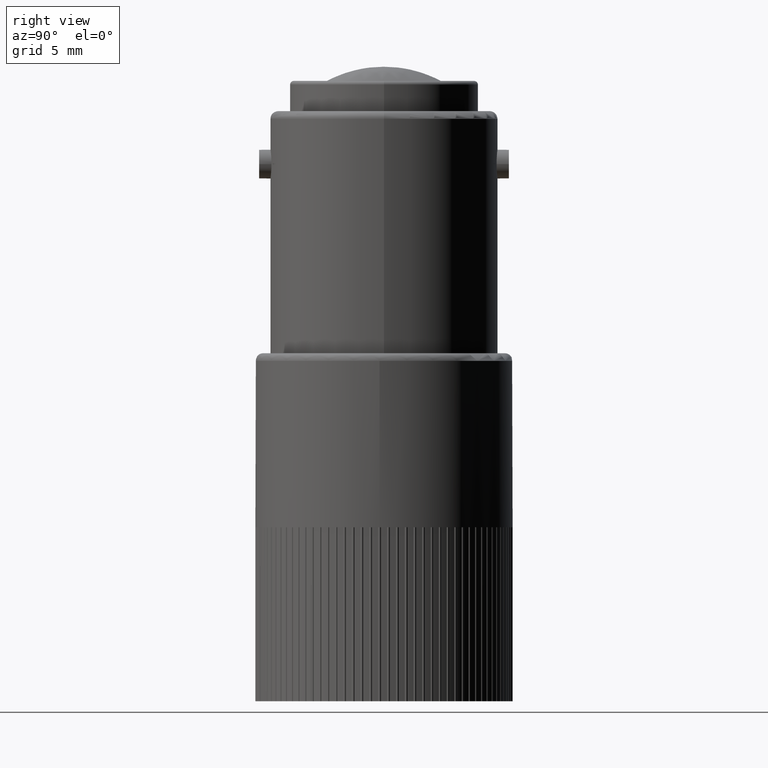
[diagram: clean part render]
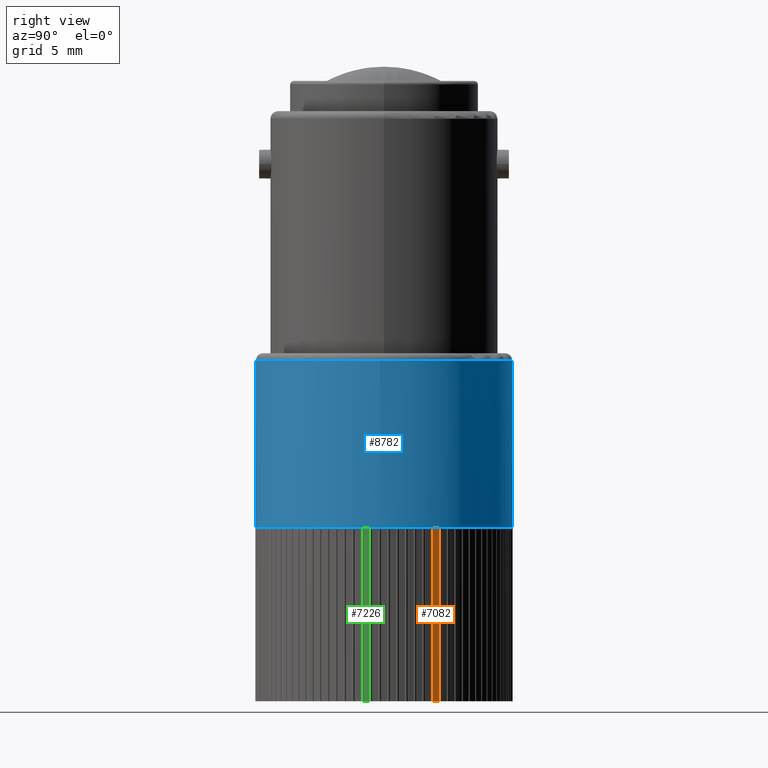
[diagram: same view with three faces highlighted in distinct colors, each labeled with its STEP entity id]
A machine part, right view with three faces highlighted in distinct colors.
Their STEP definitions:

[orange] entity #7082 — the highlighted cylindrical surface (partial cylindrical patch) has radius 8.45 mm, axis along (0, 0, -1).
#3764=CARTESIAN_POINT('',(-4.145187078477905,8.979376037539492,-11.500000000000002));
#3765=VERTEX_POINT('',#3764);
#3790=CARTESIAN_POINT('',(-4.145187078477905,8.979376037539492,-23.000000000000004));
#3791=VERTEX_POINT('',#3790);
#3799=CARTESIAN_POINT('',(-4.145187078477905,8.979376037539492,-11.500000000000002));
#3800=DIRECTION('',(0.0,0.0,-1.0));
#3801=VECTOR('',#3800,11.500000000000002);
#3802=LINE('',#3799,#3801);
#3803=EDGE_CURVE('',#3765,#3791,#3802,.T.);
#3824=CARTESIAN_POINT('',(-4.315496412967583,9.361897065742458,-11.500000000000002));
#3825=VERTEX_POINT('',#3824);
#3833=CARTESIAN_POINT('',(-4.315496412967583,9.361897065742458,-23.000000000000004));
#3834=VERTEX_POINT('',#3833);
#3835=CARTESIAN_POINT('',(-4.315496412967583,9.361897065742458,-23.000000000000004));
#3836=DIRECTION('',(0.0,0.0,1.0));
#3837=VECTOR('',#3836,11.500000000000002);
#3838=LINE('',#3835,#3837);
#3839=EDGE_CURVE('',#3834,#3825,#3838,.T.);
#5024=CARTESIAN_POINT('',(-11.947431124239413,5.734766993235528,-11.500000000000002));
#5025=DIRECTION('',(0.0,0.0,1.0));
#5026=DIRECTION('',(1.0,0.0,0.0));
#5027=AXIS2_PLACEMENT_3D('',#5024,#5025,#5026);
#5028=CIRCLE('',#5027,8.449999999999999);
#5029=EDGE_CURVE('',#3765,#3825,#5028,.T.);
#7065=CARTESIAN_POINT('',(-11.947431124239413,5.734766993235528,-11.500000000000002));
#7066=DIRECTION('',(0.0,0.0,-1.0));
#7067=DIRECTION('',(1.0,0.0,0.0));
#7068=AXIS2_PLACEMENT_3D('',#7065,#7066,#7067);
#7069=CYLINDRICAL_SURFACE('',#7068,8.449999999999999);
#7070=ORIENTED_EDGE('',*,*,#3803,.T.);
#7071=CARTESIAN_POINT('',(-11.947431124239413,5.734766993235528,-23.000000000000004));
#7072=DIRECTION('',(0.0,0.0,1.0));
#7073=DIRECTION('',(1.0,0.0,0.0));
#7074=AXIS2_PLACEMENT_3D('',#7071,#7072,#7073);
#7075=CIRCLE('',#7074,8.449999999999999);
#7076=EDGE_CURVE('',#3791,#3834,#7075,.T.);
#7077=ORIENTED_EDGE('',*,*,#7076,.T.);
#7078=ORIENTED_EDGE('',*,*,#3839,.T.);
#7079=ORIENTED_EDGE('',*,*,#5029,.F.);
#7080=EDGE_LOOP('',(#7070,#7077,#7078,#7079));
#7081=FACE_OUTER_BOUND('',#7080,.T.);
#7082=ADVANCED_FACE('',(#7081),#7069,.T.);

[blue] entity #8782 — the highlighted cylindrical surface (bore or boss wall) has radius 8.5 mm, axis along (0, 0, -1).
#90=CARTESIAN_POINT('',(-12.540361151064484,14.214061420444038,-11.500000000000002));
#91=VERTEX_POINT('',#90);
#141=CARTESIAN_POINT('',(-13.130402482399980,14.152045577538882,-11.500000000000002));
#142=VERTEX_POINT('',#141);
#192=CARTESIAN_POINT('',(-13.714680496190375,14.049021599472880,-11.500000000000002));
#193=VERTEX_POINT('',#192);
#243=CARTESIAN_POINT('',(-14.290348648683908,13.905491408711244,-11.500000000000002));
#244=VERTEX_POINT('',#243);
#294=CARTESIAN_POINT('',(-14.854602342507599,13.722154269915752,-11.500000000000002));
#295=VERTEX_POINT('',#294);
#345=CARTESIAN_POINT('',(-15.404692590383720,13.499903383197637,-11.500000000000002));
#346=VERTEX_POINT('',#345);
#396=CARTESIAN_POINT('',(-15.937939407919492,13.239821532536414,-11.500000000000002));
#397=VERTEX_POINT('',#396);
#447=CARTESIAN_POINT('',(-16.451744870221660,12.943175810565153,-11.500000000000002));
#448=VERTEX_POINT('',#447);
#498=CARTESIAN_POINT('',(-16.943605768725444,12.611411445422586,-11.500000000000002));
#499=VERTEX_POINT('',#498);
#549=CARTESIAN_POINT('',(-17.411125806575001,12.246144759746841,-11.500000000000002));
#550=VERTEX_POINT('',#549);
#600=CARTESIAN_POINT('',(-17.852027273140894,11.849155296114063,-11.500000000000002));
#601=VERTEX_POINT('',#600);
#651=CARTESIAN_POINT('',(-18.264162140797271,11.422377147285822,-11.500000000000002));
#652=VERTEX_POINT('',#651);
#702=CARTESIAN_POINT('',(-18.645522529896553,10.967889533503625,-11.500000000000002));
#703=VERTEX_POINT('',#702);
#753=CARTESIAN_POINT('',(-18.994250490957270,10.487906672736877,-11.500000000000002));
#754=VERTEX_POINT('',#753);
#804=CARTESIAN_POINT('',(-19.308647056407150,9.984766993235533,-11.500000000000002));
#805=VERTEX_POINT('',#804);
#855=CARTESIAN_POINT('',(-19.587180517782336,9.460921740942686,-11.500000000000002));
#856=VERTEX_POINT('',#855);
#906=CARTESIAN_POINT('',(-19.828493888057114,8.918923037270783,-11.500000000000002));
#907=VERTEX_POINT('',#906);
#957=CARTESIAN_POINT('',(-20.031411512748228,8.361411445422581,-11.500000000000002));
#958=VERTEX_POINT('',#957);
#1008=CARTESIAN_POINT('',(-20.194944797585386,7.791103105832706,-11.500000000000002));
#1009=VERTEX_POINT('',#1008);
#1059=CARTESIAN_POINT('',(-20.318297024843190,7.210776503404431,-11.500000000000002));
#1060=VERTEX_POINT('',#1059);
#1110=CARTESIAN_POINT('',(-20.400867234869743,6.623258931010581,-11.500000000000002));
#1111=VERTEX_POINT('',#1110);
#1161=CARTESIAN_POINT('',(-20.442253153901735,6.031412715206792,-11.500000000000002));
#1162=VERTEX_POINT('',#1161);
#1212=CARTESIAN_POINT('',(-20.442253153901724,5.438121271264275,-11.500000000000002));
#1213=VERTEX_POINT('',#1212);
#1263=CARTESIAN_POINT('',(-20.400867234869736,4.846275055460476,-11.500000000000002));
#1264=VERTEX_POINT('',#1263);
#1314=CARTESIAN_POINT('',(-20.318297024843190,4.258757483066621,-11.500000000000002));
#1315=VERTEX_POINT('',#1314);
#1365=CARTESIAN_POINT('',(-20.194944797585389,3.678430880638354,-11.500000000000002));
#1366=VERTEX_POINT('',#1365);
#1416=CARTESIAN_POINT('',(-20.031411512748221,3.108122541048473,-11.500000000000002));
#1417=VERTEX_POINT('',#1416);
#1467=CARTESIAN_POINT('',(-19.828493888057110,2.550610949200275,-11.500000000000002));
#1468=VERTEX_POINT('',#1467);
#1518=CARTESIAN_POINT('',(-19.587180517782336,2.008612245528369,-11.500000000000002));
#1519=VERTEX_POINT('',#1518);
#1569=CARTESIAN_POINT('',(-19.308647056407146,1.484766993235522,-11.500000000000002));
#1570=VERTEX_POINT('',#1569);
#1620=CARTESIAN_POINT('',(-18.994250490957274,0.981627313734179,-11.500000000000002));
#1621=VERTEX_POINT('',#1620);
#1671=CARTESIAN_POINT('',(-18.645522529896553,0.501644452967434,-11.500000000000002));
#1672=VERTEX_POINT('',#1671);
#1722=CARTESIAN_POINT('',(-18.264162140797268,0.047156839185235,-11.500000000000002));
#1723=VERTEX_POINT('',#1722);
#1773=CARTESIAN_POINT('',(-17.852027273140894,-0.379621309643006,-11.500000000000002));
#1774=VERTEX_POINT('',#1773);
#1824=CARTESIAN_POINT('',(-17.411125806575001,-0.776610773275784,-11.500000000000002));
#1825=VERTEX_POINT('',#1824);
#1875=CARTESIAN_POINT('',(-16.943605768725440,-1.141877458951528,-11.500000000000002));
#1876=VERTEX_POINT('',#1875);
#1926=CARTESIAN_POINT('',(-16.451744870221656,-1.473641824094094,-11.500000000000002));
#1927=VERTEX_POINT('',#1926);
#1977=CARTESIAN_POINT('',(-15.937939407919488,-1.770287546065352,-11.500000000000002));
#1978=VERTEX_POINT('',#1977);
#2028=CARTESIAN_POINT('',(-15.404692590383714,-2.030369396726580,-11.500000000000002));
#2029=VERTEX_POINT('',#2028);
#2079=CARTESIAN_POINT('',(-14.854602342507597,-2.252620283444690,-11.500000000000002));
#2080=VERTEX_POINT('',#2079);
#2130=CARTESIAN_POINT('',(-14.290348648683908,-2.435957422240182,-11.500000000000002));
#2131=VERTEX_POINT('',#2130);
#2181=CARTESIAN_POINT('',(-13.714680496190372,-2.579487613001820,-11.500000000000002));
#2182=VERTEX_POINT('',#2181);
#2232=CARTESIAN_POINT('',(-13.130402482399973,-2.682511591067824,-11.500000000000002));
#2233=VERTEX_POINT('',#2232);
#2283=CARTESIAN_POINT('',(-12.540361151064483,-2.744527433972981,-11.500000000000002));
#2284=VERTEX_POINT('',#2283);
#2334=CARTESIAN_POINT('',(-11.947431124239413,-2.765233006764472,-11.500000000000002));
#2335=VERTEX_POINT('',#2334);
#2385=CARTESIAN_POINT('',(-11.354501097414351,-2.744527433972978,-11.500000000000002));
#2386=VERTEX_POINT('',#2385);
#2436=CARTESIAN_POINT('',(-10.764459766078856,-2.682511591067822,-11.500000000000002));
#2437=VERTEX_POINT('',#2436);
#2487=CARTESIAN_POINT('',(-10.180181752288458,-2.579487613001821,-11.500000000000002));
#2488=VERTEX_POINT('',#2487);
#2538=CARTESIAN_POINT('',(-9.604513599794922,-2.435957422240182,-11.500000000000002));
#2539=VERTEX_POINT('',#2538);
#2589=CARTESIAN_POINT('',(-9.040259905971235,-2.252620283444695,-11.500000000000002));
#2590=VERTEX_POINT('',#2589);
#2640=CARTESIAN_POINT('',(-8.490169658095111,-2.030369396726580,-11.500000000000002));
#2641=VERTEX_POINT('',#2640);
#2691=CARTESIAN_POINT('',(-7.956922840559345,-1.770287546065351,-11.500000000000002));
#2692=VERTEX_POINT('',#2691);
#2742=CARTESIAN_POINT('',(-7.443117378257168,-1.473641824094095,-11.500000000000002));
#2743=VERTEX_POINT('',#2742);
#2793=CARTESIAN_POINT('',(-6.951256479753388,-1.141877458951524,-11.500000000000002));
#2794=VERTEX_POINT('',#2793);
#2844=CARTESIAN_POINT('',(-6.483736441903827,-0.776610773275783,-11.500000000000002));
#2845=VERTEX_POINT('',#2844);
#2895=CARTESIAN_POINT('',(-6.042834975337942,-0.379621309643008,-11.500000000000002));
#2896=VERTEX_POINT('',#2895);
#2946=CARTESIAN_POINT('',(-5.630700107681559,0.047156839185232,-11.500000000000002));
#2947=VERTEX_POINT('',#2946);
#2997=CARTESIAN_POINT('',(-5.249339718582277,0.501644452967431,-11.500000000000002));
#2998=VERTEX_POINT('',#2997);
#3048=CARTESIAN_POINT('',(-4.900611757521553,0.981627313734182,-11.500000000000002));
#3049=VERTEX_POINT('',#3048);
#3099=CARTESIAN_POINT('',(-4.586215192071684,1.484766993235530,-11.500000000000002));
#3100=VERTEX_POINT('',#3099);
#3150=CARTESIAN_POINT('',(-4.307681730696499,2.008612245528370,-11.500000000000002));
#3151=VERTEX_POINT('',#3150);
#3201=CARTESIAN_POINT('',(-4.066368360421721,2.550610949200276,-11.500000000000002));
#3202=VERTEX_POINT('',#3201);
#3252=CARTESIAN_POINT('',(-3.863450735730605,3.108122541048475,-11.500000000000002));
#3253=VERTEX_POINT('',#3252);
#3303=CARTESIAN_POINT('',(-3.699917450893447,3.678430880638354,-11.500000000000002));
#3304=VERTEX_POINT('',#3303);
#3354=CARTESIAN_POINT('',(-3.576565223635643,4.258757483066622,-11.500000000000002));
#3355=VERTEX_POINT('',#3354);
#3405=CARTESIAN_POINT('',(-3.493995013609086,4.846275055460475,-11.500000000000002));
#3406=VERTEX_POINT('',#3405);
#3456=CARTESIAN_POINT('',(-3.452609094577099,5.438121271264271,-11.500000000000002));
#3457=VERTEX_POINT('',#3456);
#3507=CARTESIAN_POINT('',(-3.452609094577102,6.031412715206787,-11.500000000000002));
#3508=VERTEX_POINT('',#3507);
#3558=CARTESIAN_POINT('',(-3.493995013609089,6.623258931010584,-11.500000000000002));
#3559=VERTEX_POINT('',#3558);
#3609=CARTESIAN_POINT('',(-3.576565223635644,7.210776503404440,-11.500000000000002));
#3610=VERTEX_POINT('',#3609);
#3660=CARTESIAN_POINT('',(-3.699917450893442,7.791103105832708,-11.500000000000002));
#3661=VERTEX_POINT('',#3660);
#3711=CARTESIAN_POINT('',(-3.863450735730609,8.361411445422581,-11.500000000000002));
#3712=VERTEX_POINT('',#3711);
#3762=CARTESIAN_POINT('',(-4.066368360421718,8.918923037270780,-11.500000000000002));
#3763=VERTEX_POINT('',#3762);
#3813=CARTESIAN_POINT('',(-4.307681730696497,9.460921740942691,-11.500000000000002));
#3814=VERTEX_POINT('',#3813);
#3864=CARTESIAN_POINT('',(-4.586215192071688,9.984766993235532,-11.500000000000002));
#3865=VERTEX_POINT('',#3864);
#3915=CARTESIAN_POINT('',(-4.900611757521559,10.487906672736873,-11.500000000000002));
#3916=VERTEX_POINT('',#3915);
#3966=CARTESIAN_POINT('',(-5.249339718582276,10.967889533503625,-11.500000000000002));
#3967=VERTEX_POINT('',#3966);
#4017=CARTESIAN_POINT('',(-5.630700107681564,11.422377147285827,-11.500000000000002));
#4018=VERTEX_POINT('',#4017);
#4068=CARTESIAN_POINT('',(-6.042834975337936,11.849155296114066,-11.500000000000002));
#4069=VERTEX_POINT('',#4068);
#4119=CARTESIAN_POINT('',(-6.483736441903830,12.246144759746844,-11.500000000000002));
#4120=VERTEX_POINT('',#4119);
#4170=CARTESIAN_POINT('',(-6.951256479753392,12.611411445422583,-11.500000000000002));
#4171=VERTEX_POINT('',#4170);
#4221=CARTESIAN_POINT('',(-7.443117378257171,12.943175810565153,-11.500000000000002));
#4222=VERTEX_POINT('',#4221);
#4272=CARTESIAN_POINT('',(-7.956922840559340,13.239821532536409,-11.500000000000002));
#4273=VERTEX_POINT('',#4272);
#4323=CARTESIAN_POINT('',(-8.490169658095113,13.499903383197642,-11.500000000000002));
#4324=VERTEX_POINT('',#4323);
#4374=CARTESIAN_POINT('',(-9.040259905971229,13.722154269915752,-11.500000000000002));
#4375=VERTEX_POINT('',#4374);
#4425=CARTESIAN_POINT('',(-9.604513599794920,13.905491408711244,-11.500000000000002));
#4426=VERTEX_POINT('',#4425);
#4476=CARTESIAN_POINT('',(-10.180181752288464,14.049021599472880,-11.500000000000002));
#4477=VERTEX_POINT('',#4476);
#4527=CARTESIAN_POINT('',(-10.764459766078856,14.152045577538882,-11.500000000000002));
#4528=VERTEX_POINT('',#4527);
#4578=CARTESIAN_POINT('',(-11.354501097414349,14.214061420444038,-11.500000000000002));
#4579=VERTEX_POINT('',#4578);
#4639=CARTESIAN_POINT('',(-11.947431124239413,14.234766993235528,-11.500000000000002));
#4640=VERTEX_POINT('',#4639);
#4648=CARTESIAN_POINT('',(-11.947431124239413,5.734766993235528,-11.500000000000002));
#4649=DIRECTION('',(0.0,0.0,1.0));
#4650=DIRECTION('',(1.0,0.0,0.0));
#4651=AXIS2_PLACEMENT_3D('',#4648,#4649,#4650);
#4652=CIRCLE('',#4651,8.500000000000000);
#4653=EDGE_CURVE('',#4579,#4640,#4652,.T.);
#4672=CARTESIAN_POINT('',(-11.947431124239413,5.734766993235528,-11.500000000000002));
#4673=DIRECTION('',(0.0,0.0,1.0));
#4674=DIRECTION('',(1.0,0.0,0.0));
#4675=AXIS2_PLACEMENT_3D('',#4672,#4673,#4674);
#4676=CIRCLE('',#4675,8.500000000000000);
#4677=EDGE_CURVE('',#4528,#4579,#4676,.T.);
#4696=CARTESIAN_POINT('',(-11.947431124239413,5.734766993235528,-11.500000000000002));
#4697=DIRECTION('',(0.0,0.0,1.0));
#4698=DIRECTION('',(1.0,0.0,0.0));
#4699=AXIS2_PLACEMENT_3D('',#4696,#4697,#4698);
#4700=CIRCLE('',#4699,8.500000000000000);
#4701=EDGE_CURVE('',#4477,#4528,#4700,.T.);
#4720=CARTESIAN_POINT('',(-11.947431124239413,5.734766993235528,-11.500000000000002));
#4721=DIRECTION('',(0.0,0.0,1.0));
#4722=DIRECTION('',(1.0,0.0,0.0));
#4723=AXIS2_PLACEMENT_3D('',#4720,#4721,#4722);
#4724=CIRCLE('',#4723,8.500000000000000);
#4725=EDGE_CURVE('',#4426,#4477,#4724,.T.);
#4744=CARTESIAN_POINT('',(-11.947431124239413,5.734766993235528,-11.500000000000002));
#4745=DIRECTION('',(0.0,0.0,1.0));
#4746=DIRECTION('',(1.0,0.0,0.0));
#4747=AXIS2_PLACEMENT_3D('',#4744,#4745,#4746);
#4748=CIRCLE('',#4747,8.500000000000000);
#4749=EDGE_CURVE('',#4375,#4426,#4748,.T.);
#4768=CARTESIAN_POINT('',(-11.947431124239413,5.734766993235528,-11.500000000000002));
#4769=DIRECTION('',(0.0,0.0,1.0));
#4770=DIRECTION('',(1.0,0.0,0.0));
#4771=AXIS2_PLACEMENT_3D('',#4768,#4769,#4770);
#4772=CIRCLE('',#4771,8.500000000000000);
#4773=EDGE_CURVE('',#4324,#4375,#4772,.T.);
#4792=CARTESIAN_POINT('',(-11.947431124239413,5.734766993235528,-11.500000000000002));
#4793=DIRECTION('',(0.0,0.0,1.0));
#4794=DIRECTION('',(1.0,0.0,0.0));
#4795=AXIS2_PLACEMENT_3D('',#4792,#4793,#4794);
#4796=CIRCLE('',#4795,8.500000000000000);
#4797=EDGE_CURVE('',#4273,#4324,#4796,.T.);
#4816=CARTESIAN_POINT('',(-11.947431124239413,5.734766993235528,-11.500000000000002));
#4817=DIRECTION('',(0.0,0.0,1.0));
#4818=DIRECTION('',(1.0,0.0,0.0));
#4819=AXIS2_PLACEMENT_3D('',#4816,#4817,#4818);
#4820=CIRCLE('',#4819,8.500000000000000);
#4821=EDGE_CURVE('',#4222,#4273,#4820,.T.);
#4840=CARTESIAN_POINT('',(-11.947431124239413,5.734766993235528,-11.500000000000002));
#4841=DIRECTION('',(0.0,0.0,1.0));
#4842=DIRECTION('',(1.0,0.0,0.0));
#4843=AXIS2_PLACEMENT_3D('',#4840,#4841,#4842);
#4844=CIRCLE('',#4843,8.500000000000000);
#4845=EDGE_CURVE('',#4171,#4222,#4844,.T.);
#4864=CARTESIAN_POINT('',(-11.947431124239413,5.734766993235528,-11.500000000000002));
#4865=DIRECTION('',(0.0,0.0,1.0));
#4866=DIRECTION('',(1.0,0.0,0.0));
#4867=AXIS2_PLACEMENT_3D('',#4864,#4865,#4866);
#4868=CIRCLE('',#4867,8.500000000000000);
#4869=EDGE_CURVE('',#4120,#4171,#4868,.T.);
#4888=CARTESIAN_POINT('',(-11.947431124239413,5.734766993235528,-11.500000000000002));
#4889=DIRECTION('',(0.0,0.0,1.0));
#4890=DIRECTION('',(1.0,0.0,0.0));
#4891=AXIS2_PLACEMENT_3D('',#4888,#4889,#4890);
#4892=CIRCLE('',#4891,8.500000000000000);
#4893=EDGE_CURVE('',#4069,#4120,#4892,.T.);
#4912=CARTESIAN_POINT('',(-11.947431124239413,5.734766993235528,-11.500000000000002));
#4913=DIRECTION('',(0.0,0.0,1.0));
#4914=DIRECTION('',(1.0,0.0,0.0));
#4915=AXIS2_PLACEMENT_3D('',#4912,#4913,#4914);
#4916=CIRCLE('',#4915,8.500000000000000);
#4917=EDGE_CURVE('',#4018,#4069,#4916,.T.);
#4936=CARTESIAN_POINT('',(-11.947431124239413,5.734766993235528,-11.500000000000002));
#4937=DIRECTION('',(0.0,0.0,1.0));
#4938=DIRECTION('',(1.0,0.0,0.0));
#4939=AXIS2_PLACEMENT_3D('',#4936,#4937,#4938);
#4940=CIRCLE('',#4939,8.500000000000000);
#4941=EDGE_CURVE('',#3967,#4018,#4940,.T.);
#4960=CARTESIAN_POINT('',(-11.947431124239413,5.734766993235528,-11.500000000000002));
#4961=DIRECTION('',(0.0,0.0,1.0));
#4962=DIRECTION('',(1.0,0.0,0.0));
#4963=AXIS2_PLACEMENT_3D('',#4960,#4961,#4962);
#4964=CIRCLE('',#4963,8.500000000000000);
#4965=EDGE_CURVE('',#3916,#3967,#4964,.T.);
#4984=CARTESIAN_POINT('',(-11.947431124239413,5.734766993235528,-11.500000000000002));
#4985=DIRECTION('',(0.0,0.0,1.0));
#4986=DIRECTION('',(1.0,0.0,0.0));
#4987=AXIS2_PLACEMENT_3D('',#4984,#4985,#4986);
#4988=CIRCLE('',#4987,8.500000000000000);
#4989=EDGE_CURVE('',#3865,#3916,#4988,.T.);
#5008=CARTESIAN_POINT('',(-11.947431124239413,5.734766993235528,-11.500000000000002));
#5009=DIRECTION('',(0.0,0.0,1.0));
#5010=DIRECTION('',(1.0,0.0,0.0));
#5011=AXIS2_PLACEMENT_3D('',#5008,#5009,#5010);
#5012=CIRCLE('',#5011,8.500000000000000);
#5013=EDGE_CURVE('',#3814,#3865,#5012,.T.);
#5032=CARTESIAN_POINT('',(-11.947431124239413,5.734766993235528,-11.500000000000002));
#5033=DIRECTION('',(0.0,0.0,1.0));
#5034=DIRECTION('',(1.0,0.0,0.0));
#5035=AXIS2_PLACEMENT_3D('',#5032,#5033,#5034);
#5036=CIRCLE('',#5035,8.500000000000000);
#5037=EDGE_CURVE('',#3763,#3814,#5036,.T.);
#5056=CARTESIAN_POINT('',(-11.947431124239413,5.734766993235528,-11.500000000000002));
#5057=DIRECTION('',(0.0,0.0,1.0));
#5058=DIRECTION('',(1.0,0.0,0.0));
#5059=AXIS2_PLACEMENT_3D('',#5056,#5057,#5058);
#5060=CIRCLE('',#5059,8.500000000000000);
#5061=EDGE_CURVE('',#3712,#3763,#5060,.T.);
#5080=CARTESIAN_POINT('',(-11.947431124239413,5.734766993235528,-11.500000000000002));
#5081=DIRECTION('',(0.0,0.0,1.0));
#5082=DIRECTION('',(1.0,0.0,0.0));
#5083=AXIS2_PLACEMENT_3D('',#5080,#5081,#5082);
#5084=CIRCLE('',#5083,8.500000000000000);
#5085=EDGE_CURVE('',#3661,#3712,#5084,.T.);
#5104=CARTESIAN_POINT('',(-11.947431124239413,5.734766993235528,-11.500000000000002));
#5105=DIRECTION('',(0.0,0.0,1.0));
#5106=DIRECTION('',(1.0,0.0,0.0));
#5107=AXIS2_PLACEMENT_3D('',#5104,#5105,#5106);
#5108=CIRCLE('',#5107,8.500000000000000);
#5109=EDGE_CURVE('',#3610,#3661,#5108,.T.);
#5128=CARTESIAN_POINT('',(-11.947431124239413,5.734766993235528,-11.500000000000002));
#5129=DIRECTION('',(0.0,0.0,1.0));
#5130=DIRECTION('',(1.0,0.0,0.0));
#5131=AXIS2_PLACEMENT_3D('',#5128,#5129,#5130);
#5132=CIRCLE('',#5131,8.500000000000000);
#5133=EDGE_CURVE('',#3559,#3610,#5132,.T.);
#5152=CARTESIAN_POINT('',(-11.947431124239413,5.734766993235528,-11.500000000000002));
#5153=DIRECTION('',(0.0,0.0,1.0));
#5154=DIRECTION('',(1.0,0.0,0.0));
#5155=AXIS2_PLACEMENT_3D('',#5152,#5153,#5154);
#5156=CIRCLE('',#5155,8.500000000000000);
#5157=EDGE_CURVE('',#3508,#3559,#5156,.T.);
#5176=CARTESIAN_POINT('',(-11.947431124239413,5.734766993235528,-11.500000000000002));
#5177=DIRECTION('',(0.0,0.0,1.0));
#5178=DIRECTION('',(1.0,0.0,0.0));
#5179=AXIS2_PLACEMENT_3D('',#5176,#5177,#5178);
#5180=CIRCLE('',#5179,8.500000000000000);
#5181=EDGE_CURVE('',#3457,#3508,#5180,.T.);
#5200=CARTESIAN_POINT('',(-11.947431124239413,5.734766993235528,-11.500000000000002));
#5201=DIRECTION('',(0.0,0.0,1.0));
#5202=DIRECTION('',(1.0,0.0,0.0));
#5203=AXIS2_PLACEMENT_3D('',#5200,#5201,#5202);
#5204=CIRCLE('',#5203,8.500000000000000);
#5205=EDGE_CURVE('',#3406,#3457,#5204,.T.);
#5224=CARTESIAN_POINT('',(-11.947431124239413,5.734766993235528,-11.500000000000002));
#5225=DIRECTION('',(0.0,0.0,1.0));
#5226=DIRECTION('',(1.0,0.0,0.0));
#5227=AXIS2_PLACEMENT_3D('',#5224,#5225,#5226);
#5228=CIRCLE('',#5227,8.500000000000000);
#5229=EDGE_CURVE('',#3355,#3406,#5228,.T.);
#5248=CARTESIAN_POINT('',(-11.947431124239413,5.734766993235528,-11.500000000000002));
#5249=DIRECTION('',(0.0,0.0,1.0));
#5250=DIRECTION('',(1.0,0.0,0.0));
#5251=AXIS2_PLACEMENT_3D('',#5248,#5249,#5250);
#5252=CIRCLE('',#5251,8.500000000000000);
#5253=EDGE_CURVE('',#3304,#3355,#5252,.T.);
#5272=CARTESIAN_POINT('',(-11.947431124239413,5.734766993235528,-11.500000000000002));
#5273=DIRECTION('',(0.0,0.0,1.0));
#5274=DIRECTION('',(1.0,0.0,0.0));
#5275=AXIS2_PLACEMENT_3D('',#5272,#5273,#5274);
#5276=CIRCLE('',#5275,8.500000000000000);
#5277=EDGE_CURVE('',#3253,#3304,#5276,.T.);
#5296=CARTESIAN_POINT('',(-11.947431124239413,5.734766993235528,-11.500000000000002));
#5297=DIRECTION('',(0.0,0.0,1.0));
#5298=DIRECTION('',(1.0,0.0,0.0));
#5299=AXIS2_PLACEMENT_3D('',#5296,#5297,#5298);
#5300=CIRCLE('',#5299,8.500000000000000);
#5301=EDGE_CURVE('',#3202,#3253,#5300,.T.);
#5320=CARTESIAN_POINT('',(-11.947431124239413,5.734766993235528,-11.500000000000002));
#5321=DIRECTION('',(0.0,0.0,1.0));
#5322=DIRECTION('',(1.0,0.0,0.0));
#5323=AXIS2_PLACEMENT_3D('',#5320,#5321,#5322);
#5324=CIRCLE('',#5323,8.500000000000000);
#5325=EDGE_CURVE('',#3151,#3202,#5324,.T.);
#5344=CARTESIAN_POINT('',(-11.947431124239413,5.734766993235528,-11.500000000000002));
#5345=DIRECTION('',(0.0,0.0,1.0));
#5346=DIRECTION('',(1.0,0.0,0.0));
#5347=AXIS2_PLACEMENT_3D('',#5344,#5345,#5346);
#5348=CIRCLE('',#5347,8.500000000000000);
#5349=EDGE_CURVE('',#3100,#3151,#5348,.T.);
#5368=CARTESIAN_POINT('',(-11.947431124239413,5.734766993235528,-11.500000000000002));
#5369=DIRECTION('',(0.0,0.0,1.0));
#5370=DIRECTION('',(1.0,0.0,0.0));
#5371=AXIS2_PLACEMENT_3D('',#5368,#5369,#5370);
#5372=CIRCLE('',#5371,8.500000000000000);
#5373=EDGE_CURVE('',#3049,#3100,#5372,.T.);
#5392=CARTESIAN_POINT('',(-11.947431124239413,5.734766993235528,-11.500000000000002));
#5393=DIRECTION('',(0.0,0.0,1.0));
#5394=DIRECTION('',(1.0,0.0,0.0));
#5395=AXIS2_PLACEMENT_3D('',#5392,#5393,#5394);
#5396=CIRCLE('',#5395,8.500000000000000);
#5397=EDGE_CURVE('',#2998,#3049,#5396,.T.);
#5416=CARTESIAN_POINT('',(-11.947431124239413,5.734766993235528,-11.500000000000002));
#5417=DIRECTION('',(0.0,0.0,1.0));
#5418=DIRECTION('',(1.0,0.0,0.0));
#5419=AXIS2_PLACEMENT_3D('',#5416,#5417,#5418);
#5420=CIRCLE('',#5419,8.500000000000000);
#5421=EDGE_CURVE('',#2947,#2998,#5420,.T.);
#5440=CARTESIAN_POINT('',(-11.947431124239413,5.734766993235528,-11.500000000000002));
#5441=DIRECTION('',(0.0,0.0,1.0));
#5442=DIRECTION('',(1.0,0.0,0.0));
#5443=AXIS2_PLACEMENT_3D('',#5440,#5441,#5442);
#5444=CIRCLE('',#5443,8.500000000000000);
#5445=EDGE_CURVE('',#2896,#2947,#5444,.T.);
#5464=CARTESIAN_POINT('',(-11.947431124239413,5.734766993235528,-11.500000000000002));
#5465=DIRECTION('',(0.0,0.0,1.0));
#5466=DIRECTION('',(1.0,0.0,0.0));
#5467=AXIS2_PLACEMENT_3D('',#5464,#5465,#5466);
#5468=CIRCLE('',#5467,8.500000000000000);
#5469=EDGE_CURVE('',#2845,#2896,#5468,.T.);
#5488=CARTESIAN_POINT('',(-11.947431124239413,5.734766993235528,-11.500000000000002));
#5489=DIRECTION('',(0.0,0.0,1.0));
#5490=DIRECTION('',(1.0,0.0,0.0));
#5491=AXIS2_PLACEMENT_3D('',#5488,#5489,#5490);
#5492=CIRCLE('',#5491,8.500000000000000);
#5493=EDGE_CURVE('',#2794,#2845,#5492,.T.);
#5512=CARTESIAN_POINT('',(-11.947431124239413,5.734766993235528,-11.500000000000002));
#5513=DIRECTION('',(0.0,0.0,1.0));
#5514=DIRECTION('',(1.0,0.0,0.0));
#5515=AXIS2_PLACEMENT_3D('',#5512,#5513,#5514);
#5516=CIRCLE('',#5515,8.500000000000000);
#5517=EDGE_CURVE('',#2743,#2794,#5516,.T.);
#5536=CARTESIAN_POINT('',(-11.947431124239413,5.734766993235528,-11.500000000000002));
#5537=DIRECTION('',(0.0,0.0,1.0));
#5538=DIRECTION('',(1.0,0.0,0.0));
#5539=AXIS2_PLACEMENT_3D('',#5536,#5537,#5538);
#5540=CIRCLE('',#5539,8.500000000000000);
#5541=EDGE_CURVE('',#2692,#2743,#5540,.T.);
#5560=CARTESIAN_POINT('',(-11.947431124239413,5.734766993235528,-11.500000000000002));
#5561=DIRECTION('',(0.0,0.0,1.0));
#5562=DIRECTION('',(1.0,0.0,0.0));
#5563=AXIS2_PLACEMENT_3D('',#5560,#5561,#5562);
#5564=CIRCLE('',#5563,8.500000000000000);
#5565=EDGE_CURVE('',#2641,#2692,#5564,.T.);
#5584=CARTESIAN_POINT('',(-11.947431124239413,5.734766993235528,-11.500000000000002));
#5585=DIRECTION('',(0.0,0.0,1.0));
#5586=DIRECTION('',(1.0,0.0,0.0));
#5587=AXIS2_PLACEMENT_3D('',#5584,#5585,#5586);
#5588=CIRCLE('',#5587,8.500000000000000);
#5589=EDGE_CURVE('',#2590,#2641,#5588,.T.);
#5608=CARTESIAN_POINT('',(-11.947431124239413,5.734766993235528,-11.500000000000002));
#5609=DIRECTION('',(0.0,0.0,1.0));
#5610=DIRECTION('',(1.0,0.0,0.0));
#5611=AXIS2_PLACEMENT_3D('',#5608,#5609,#5610);
#5612=CIRCLE('',#5611,8.500000000000000);
#5613=EDGE_CURVE('',#2539,#2590,#5612,.T.);
#5632=CARTESIAN_POINT('',(-11.947431124239413,5.734766993235528,-11.500000000000002));
#5633=DIRECTION('',(0.0,0.0,1.0));
#5634=DIRECTION('',(1.0,0.0,0.0));
#5635=AXIS2_PLACEMENT_3D('',#5632,#5633,#5634);
#5636=CIRCLE('',#5635,8.500000000000000);
#5637=EDGE_CURVE('',#2488,#2539,#5636,.T.);
#5656=CARTESIAN_POINT('',(-11.947431124239413,5.734766993235528,-11.500000000000002));
#5657=DIRECTION('',(0.0,0.0,1.0));
#5658=DIRECTION('',(1.0,0.0,0.0));
#5659=AXIS2_PLACEMENT_3D('',#5656,#5657,#5658);
#5660=CIRCLE('',#5659,8.500000000000000);
#5661=EDGE_CURVE('',#2437,#2488,#5660,.T.);
#5680=CARTESIAN_POINT('',(-11.947431124239413,5.734766993235528,-11.500000000000002));
#5681=DIRECTION('',(0.0,0.0,1.0));
#5682=DIRECTION('',(1.0,0.0,0.0));
#5683=AXIS2_PLACEMENT_3D('',#5680,#5681,#5682);
#5684=CIRCLE('',#5683,8.500000000000000);
#5685=EDGE_CURVE('',#2386,#2437,#5684,.T.);
#5704=CARTESIAN_POINT('',(-11.947431124239413,5.734766993235528,-11.500000000000002));
#5705=DIRECTION('',(0.0,0.0,1.0));
#5706=DIRECTION('',(1.0,0.0,0.0));
#5707=AXIS2_PLACEMENT_3D('',#5704,#5705,#5706);
#5708=CIRCLE('',#5707,8.500000000000000);
#5709=EDGE_CURVE('',#2335,#2386,#5708,.T.);
#5728=CARTESIAN_POINT('',(-11.947431124239413,5.734766993235528,-11.500000000000002));
#5729=DIRECTION('',(0.0,0.0,1.0));
#5730=DIRECTION('',(1.0,0.0,0.0));
#5731=AXIS2_PLACEMENT_3D('',#5728,#5729,#5730);
#5732=CIRCLE('',#5731,8.500000000000000);
#5733=EDGE_CURVE('',#2284,#2335,#5732,.T.);
#5752=CARTESIAN_POINT('',(-11.947431124239413,5.734766993235528,-11.500000000000002));
#5753=DIRECTION('',(0.0,0.0,1.0));
#5754=DIRECTION('',(1.0,0.0,0.0));
#5755=AXIS2_PLACEMENT_3D('',#5752,#5753,#5754);
#5756=CIRCLE('',#5755,8.500000000000000);
#5757=EDGE_CURVE('',#2233,#2284,#5756,.T.);
#5776=CARTESIAN_POINT('',(-11.947431124239413,5.734766993235528,-11.500000000000002));
#5777=DIRECTION('',(0.0,0.0,1.0));
#5778=DIRECTION('',(1.0,0.0,0.0));
#5779=AXIS2_PLACEMENT_3D('',#5776,#5777,#5778);
#5780=CIRCLE('',#5779,8.500000000000000);
#5781=EDGE_CURVE('',#2182,#2233,#5780,.T.);
#5800=CARTESIAN_POINT('',(-11.947431124239413,5.734766993235528,-11.500000000000002));
#5801=DIRECTION('',(0.0,0.0,1.0));
#5802=DIRECTION('',(1.0,0.0,0.0));
#5803=AXIS2_PLACEMENT_3D('',#5800,#5801,#5802);
#5804=CIRCLE('',#5803,8.500000000000000);
#5805=EDGE_CURVE('',#2131,#2182,#5804,.T.);
#5824=CARTESIAN_POINT('',(-11.947431124239413,5.734766993235528,-11.500000000000002));
#5825=DIRECTION('',(0.0,0.0,1.0));
#5826=DIRECTION('',(1.0,0.0,0.0));
#5827=AXIS2_PLACEMENT_3D('',#5824,#5825,#5826);
#5828=CIRCLE('',#5827,8.500000000000000);
#5829=EDGE_CURVE('',#2080,#2131,#5828,.T.);
#5848=CARTESIAN_POINT('',(-11.947431124239413,5.734766993235528,-11.500000000000002));
#5849=DIRECTION('',(0.0,0.0,1.0));
#5850=DIRECTION('',(1.0,0.0,0.0));
#5851=AXIS2_PLACEMENT_3D('',#5848,#5849,#5850);
#5852=CIRCLE('',#5851,8.500000000000000);
#5853=EDGE_CURVE('',#2029,#2080,#5852,.T.);
#5872=CARTESIAN_POINT('',(-11.947431124239413,5.734766993235528,-11.500000000000002));
#5873=DIRECTION('',(0.0,0.0,1.0));
#5874=DIRECTION('',(1.0,0.0,0.0));
#5875=AXIS2_PLACEMENT_3D('',#5872,#5873,#5874);
#5876=CIRCLE('',#5875,8.500000000000000);
#5877=EDGE_CURVE('',#1978,#2029,#5876,.T.);
#5896=CARTESIAN_POINT('',(-11.947431124239413,5.734766993235528,-11.500000000000002));
#5897=DIRECTION('',(0.0,0.0,1.0));
#5898=DIRECTION('',(1.0,0.0,0.0));
#5899=AXIS2_PLACEMENT_3D('',#5896,#5897,#5898);
#5900=CIRCLE('',#5899,8.500000000000000);
#5901=EDGE_CURVE('',#1927,#1978,#5900,.T.);
#5920=CARTESIAN_POINT('',(-11.947431124239413,5.734766993235528,-11.500000000000002));
#5921=DIRECTION('',(0.0,0.0,1.0));
#5922=DIRECTION('',(1.0,0.0,0.0));
#5923=AXIS2_PLACEMENT_3D('',#5920,#5921,#5922);
#5924=CIRCLE('',#5923,8.500000000000000);
#5925=EDGE_CURVE('',#1876,#1927,#5924,.T.);
#5944=CARTESIAN_POINT('',(-11.947431124239413,5.734766993235528,-11.500000000000002));
#5945=DIRECTION('',(0.0,0.0,1.0));
#5946=DIRECTION('',(1.0,0.0,0.0));
#5947=AXIS2_PLACEMENT_3D('',#5944,#5945,#5946);
#5948=CIRCLE('',#5947,8.500000000000000);
#5949=EDGE_CURVE('',#1825,#1876,#5948,.T.);
#5968=CARTESIAN_POINT('',(-11.947431124239413,5.734766993235528,-11.500000000000002));
#5969=DIRECTION('',(0.0,0.0,1.0));
#5970=DIRECTION('',(1.0,0.0,0.0));
#5971=AXIS2_PLACEMENT_3D('',#5968,#5969,#5970);
#5972=CIRCLE('',#5971,8.500000000000000);
#5973=EDGE_CURVE('',#1774,#1825,#5972,.T.);
#5992=CARTESIAN_POINT('',(-11.947431124239413,5.734766993235528,-11.500000000000002));
#5993=DIRECTION('',(0.0,0.0,1.0));
#5994=DIRECTION('',(1.0,0.0,0.0));
#5995=AXIS2_PLACEMENT_3D('',#5992,#5993,#5994);
#5996=CIRCLE('',#5995,8.500000000000000);
#5997=EDGE_CURVE('',#1723,#1774,#5996,.T.);
#6016=CARTESIAN_POINT('',(-11.947431124239413,5.734766993235528,-11.500000000000002));
#6017=DIRECTION('',(0.0,0.0,1.0));
#6018=DIRECTION('',(1.0,0.0,0.0));
#6019=AXIS2_PLACEMENT_3D('',#6016,#6017,#6018);
#6020=CIRCLE('',#6019,8.500000000000000);
#6021=EDGE_CURVE('',#1672,#1723,#6020,.T.);
#6040=CARTESIAN_POINT('',(-11.947431124239413,5.734766993235528,-11.500000000000002));
#6041=DIRECTION('',(0.0,0.0,1.0));
#6042=DIRECTION('',(1.0,0.0,0.0));
#6043=AXIS2_PLACEMENT_3D('',#6040,#6041,#6042);
#6044=CIRCLE('',#6043,8.500000000000000);
#6045=EDGE_CURVE('',#1621,#1672,#6044,.T.);
#6064=CARTESIAN_POINT('',(-11.947431124239413,5.734766993235528,-11.500000000000002));
#6065=DIRECTION('',(0.0,0.0,1.0));
#6066=DIRECTION('',(1.0,0.0,0.0));
#6067=AXIS2_PLACEMENT_3D('',#6064,#6065,#6066);
#6068=CIRCLE('',#6067,8.500000000000000);
#6069=EDGE_CURVE('',#1570,#1621,#6068,.T.);
#6088=CARTESIAN_POINT('',(-11.947431124239413,5.734766993235528,-11.500000000000002));
#6089=DIRECTION('',(0.0,0.0,1.0));
#6090=DIRECTION('',(1.0,0.0,0.0));
#6091=AXIS2_PLACEMENT_3D('',#6088,#6089,#6090);
#6092=CIRCLE('',#6091,8.500000000000000);
#6093=EDGE_CURVE('',#1519,#1570,#6092,.T.);
#6112=CARTESIAN_POINT('',(-11.947431124239413,5.734766993235528,-11.500000000000002));
#6113=DIRECTION('',(0.0,0.0,1.0));
#6114=DIRECTION('',(1.0,0.0,0.0));
#6115=AXIS2_PLACEMENT_3D('',#6112,#6113,#6114);
#6116=CIRCLE('',#6115,8.500000000000000);
#6117=EDGE_CURVE('',#1468,#1519,#6116,.T.);
#6136=CARTESIAN_POINT('',(-11.947431124239413,5.734766993235528,-11.500000000000002));
#6137=DIRECTION('',(0.0,0.0,1.0));
#6138=DIRECTION('',(1.0,0.0,0.0));
#6139=AXIS2_PLACEMENT_3D('',#6136,#6137,#6138);
#6140=CIRCLE('',#6139,8.500000000000000);
#6141=EDGE_CURVE('',#1417,#1468,#6140,.T.);
#6160=CARTESIAN_POINT('',(-11.947431124239413,5.734766993235528,-11.500000000000002));
#6161=DIRECTION('',(0.0,0.0,1.0));
#6162=DIRECTION('',(1.0,0.0,0.0));
#6163=AXIS2_PLACEMENT_3D('',#6160,#6161,#6162);
#6164=CIRCLE('',#6163,8.500000000000000);
#6165=EDGE_CURVE('',#1366,#1417,#6164,.T.);
#6184=CARTESIAN_POINT('',(-11.947431124239413,5.734766993235528,-11.500000000000002));
#6185=DIRECTION('',(0.0,0.0,1.0));
#6186=DIRECTION('',(1.0,0.0,0.0));
#6187=AXIS2_PLACEMENT_3D('',#6184,#6185,#6186);
#6188=CIRCLE('',#6187,8.500000000000000);
#6189=EDGE_CURVE('',#1315,#1366,#6188,.T.);
#6208=CARTESIAN_POINT('',(-11.947431124239413,5.734766993235528,-11.500000000000002));
#6209=DIRECTION('',(0.0,0.0,1.0));
#6210=DIRECTION('',(1.0,0.0,0.0));
#6211=AXIS2_PLACEMENT_3D('',#6208,#6209,#6210);
#6212=CIRCLE('',#6211,8.500000000000000);
#6213=EDGE_CURVE('',#1264,#1315,#6212,.T.);
#6232=CARTESIAN_POINT('',(-11.947431124239413,5.734766993235528,-11.500000000000002));
#6233=DIRECTION('',(0.0,0.0,1.0));
#6234=DIRECTION('',(1.0,0.0,0.0));
#6235=AXIS2_PLACEMENT_3D('',#6232,#6233,#6234);
#6236=CIRCLE('',#6235,8.500000000000000);
#6237=EDGE_CURVE('',#1213,#1264,#6236,.T.);
#6256=CARTESIAN_POINT('',(-11.947431124239413,5.734766993235528,-11.500000000000002));
#6257=DIRECTION('',(0.0,0.0,1.0));
#6258=DIRECTION('',(1.0,0.0,0.0));
#6259=AXIS2_PLACEMENT_3D('',#6256,#6257,#6258);
#6260=CIRCLE('',#6259,8.500000000000000);
#6261=EDGE_CURVE('',#1162,#1213,#6260,.T.);
#6280=CARTESIAN_POINT('',(-11.947431124239413,5.734766993235528,-11.500000000000002));
#6281=DIRECTION('',(0.0,0.0,1.0));
#6282=DIRECTION('',(1.0,0.0,0.0));
#6283=AXIS2_PLACEMENT_3D('',#6280,#6281,#6282);
#6284=CIRCLE('',#6283,8.500000000000000);
#6285=EDGE_CURVE('',#1111,#1162,#6284,.T.);
#6304=CARTESIAN_POINT('',(-11.947431124239413,5.734766993235528,-11.500000000000002));
#6305=DIRECTION('',(0.0,0.0,1.0));
#6306=DIRECTION('',(1.0,0.0,0.0));
#6307=AXIS2_PLACEMENT_3D('',#6304,#6305,#6306);
#6308=CIRCLE('',#6307,8.500000000000000);
#6309=EDGE_CURVE('',#1060,#1111,#6308,.T.);
#6328=CARTESIAN_POINT('',(-11.947431124239413,5.734766993235528,-11.500000000000002));
#6329=DIRECTION('',(0.0,0.0,1.0));
#6330=DIRECTION('',(1.0,0.0,0.0));
#6331=AXIS2_PLACEMENT_3D('',#6328,#6329,#6330);
#6332=CIRCLE('',#6331,8.500000000000000);
#6333=EDGE_CURVE('',#1009,#1060,#6332,.T.);
#6352=CARTESIAN_POINT('',(-11.947431124239413,5.734766993235528,-11.500000000000002));
#6353=DIRECTION('',(0.0,0.0,1.0));
#6354=DIRECTION('',(1.0,0.0,0.0));
#6355=AXIS2_PLACEMENT_3D('',#6352,#6353,#6354);
#6356=CIRCLE('',#6355,8.500000000000000);
#6357=EDGE_CURVE('',#958,#1009,#6356,.T.);
#6376=CARTESIAN_POINT('',(-11.947431124239413,5.734766993235528,-11.500000000000002));
#6377=DIRECTION('',(0.0,0.0,1.0));
#6378=DIRECTION('',(1.0,0.0,0.0));
#6379=AXIS2_PLACEMENT_3D('',#6376,#6377,#6378);
#6380=CIRCLE('',#6379,8.500000000000000);
#6381=EDGE_CURVE('',#907,#958,#6380,.T.);
#6400=CARTESIAN_POINT('',(-11.947431124239413,5.734766993235528,-11.500000000000002));
#6401=DIRECTION('',(0.0,0.0,1.0));
#6402=DIRECTION('',(1.0,0.0,0.0));
#6403=AXIS2_PLACEMENT_3D('',#6400,#6401,#6402);
#6404=CIRCLE('',#6403,8.500000000000000);
#6405=EDGE_CURVE('',#856,#907,#6404,.T.);
#6424=CARTESIAN_POINT('',(-11.947431124239413,5.734766993235528,-11.500000000000002));
#6425=DIRECTION('',(0.0,0.0,1.0));
#6426=DIRECTION('',(1.0,0.0,0.0));
#6427=AXIS2_PLACEMENT_3D('',#6424,#6425,#6426);
#6428=CIRCLE('',#6427,8.500000000000000);
#6429=EDGE_CURVE('',#805,#856,#6428,.T.);
#6448=CARTESIAN_POINT('',(-11.947431124239413,5.734766993235528,-11.500000000000002));
#6449=DIRECTION('',(0.0,0.0,1.0));
#6450=DIRECTION('',(1.0,0.0,0.0));
#6451=AXIS2_PLACEMENT_3D('',#6448,#6449,#6450);
#6452=CIRCLE('',#6451,8.500000000000000);
#6453=EDGE_CURVE('',#754,#805,#6452,.T.);
#6472=CARTESIAN_POINT('',(-11.947431124239413,5.734766993235528,-11.500000000000002));
#6473=DIRECTION('',(0.0,0.0,1.0));
#6474=DIRECTION('',(1.0,0.0,0.0));
#6475=AXIS2_PLACEMENT_3D('',#6472,#6473,#6474);
#6476=CIRCLE('',#6475,8.500000000000000);
#6477=EDGE_CURVE('',#703,#754,#6476,.T.);
#6496=CARTESIAN_POINT('',(-11.947431124239413,5.734766993235528,-11.500000000000002));
#6497=DIRECTION('',(0.0,0.0,1.0));
#6498=DIRECTION('',(1.0,0.0,0.0));
#6499=AXIS2_PLACEMENT_3D('',#6496,#6497,#6498);
#6500=CIRCLE('',#6499,8.500000000000000);
#6501=EDGE_CURVE('',#652,#703,#6500,.T.);
#6520=CARTESIAN_POINT('',(-11.947431124239413,5.734766993235528,-11.500000000000002));
#6521=DIRECTION('',(0.0,0.0,1.0));
#6522=DIRECTION('',(1.0,0.0,0.0));
#6523=AXIS2_PLACEMENT_3D('',#6520,#6521,#6522);
#6524=CIRCLE('',#6523,8.500000000000000);
#6525=EDGE_CURVE('',#601,#652,#6524,.T.);
#6544=CARTESIAN_POINT('',(-11.947431124239413,5.734766993235528,-11.500000000000002));
#6545=DIRECTION('',(0.0,0.0,1.0));
#6546=DIRECTION('',(1.0,0.0,0.0));
#6547=AXIS2_PLACEMENT_3D('',#6544,#6545,#6546);
#6548=CIRCLE('',#6547,8.500000000000000);
#6549=EDGE_CURVE('',#550,#601,#6548,.T.);
#6568=CARTESIAN_POINT('',(-11.947431124239413,5.734766993235528,-11.500000000000002));
#6569=DIRECTION('',(0.0,0.0,1.0));
#6570=DIRECTION('',(1.0,0.0,0.0));
#6571=AXIS2_PLACEMENT_3D('',#6568,#6569,#6570);
#6572=CIRCLE('',#6571,8.500000000000000);
#6573=EDGE_CURVE('',#499,#550,#6572,.T.);
#6592=CARTESIAN_POINT('',(-11.947431124239413,5.734766993235528,-11.500000000000002));
#6593=DIRECTION('',(0.0,0.0,1.0));
#6594=DIRECTION('',(1.0,0.0,0.0));
#6595=AXIS2_PLACEMENT_3D('',#6592,#6593,#6594);
#6596=CIRCLE('',#6595,8.500000000000000);
#6597=EDGE_CURVE('',#448,#499,#6596,.T.);
#6616=CARTESIAN_POINT('',(-11.947431124239413,5.734766993235528,-11.500000000000002));
#6617=DIRECTION('',(0.0,0.0,1.0));
#6618=DIRECTION('',(1.0,0.0,0.0));
#6619=AXIS2_PLACEMENT_3D('',#6616,#6617,#6618);
#6620=CIRCLE('',#6619,8.500000000000000);
#6621=EDGE_CURVE('',#397,#448,#6620,.T.);
#6640=CARTESIAN_POINT('',(-11.947431124239413,5.734766993235528,-11.500000000000002));
#6641=DIRECTION('',(0.0,0.0,1.0));
#6642=DIRECTION('',(1.0,0.0,0.0));
#6643=AXIS2_PLACEMENT_3D('',#6640,#6641,#6642);
#6644=CIRCLE('',#6643,8.500000000000000);
#6645=EDGE_CURVE('',#346,#397,#6644,.T.);
#6664=CARTESIAN_POINT('',(-11.947431124239413,5.734766993235528,-11.500000000000002));
#6665=DIRECTION('',(0.0,0.0,1.0));
#6666=DIRECTION('',(1.0,0.0,0.0));
#6667=AXIS2_PLACEMENT_3D('',#6664,#6665,#6666);
#6668=CIRCLE('',#6667,8.500000000000000);
#6669=EDGE_CURVE('',#295,#346,#6668,.T.);
#6688=CARTESIAN_POINT('',(-11.947431124239413,5.734766993235528,-11.500000000000002));
#6689=DIRECTION('',(0.0,0.0,1.0));
#6690=DIRECTION('',(1.0,0.0,0.0));
#6691=AXIS2_PLACEMENT_3D('',#6688,#6689,#6690);
#6692=CIRCLE('',#6691,8.500000000000000);
#6693=EDGE_CURVE('',#244,#295,#6692,.T.);
#6712=CARTESIAN_POINT('',(-11.947431124239413,5.734766993235528,-11.500000000000002));
#6713=DIRECTION('',(0.0,0.0,1.0));
#6714=DIRECTION('',(1.0,0.0,0.0));
#6715=AXIS2_PLACEMENT_3D('',#6712,#6713,#6714);
#6716=CIRCLE('',#6715,8.500000000000000);
#6717=EDGE_CURVE('',#193,#244,#6716,.T.);
#6736=CARTESIAN_POINT('',(-11.947431124239413,5.734766993235528,-11.500000000000002));
#6737=DIRECTION('',(0.0,0.0,1.0));
#6738=DIRECTION('',(1.0,0.0,0.0));
#6739=AXIS2_PLACEMENT_3D('',#6736,#6737,#6738);
#6740=CIRCLE('',#6739,8.500000000000000);
#6741=EDGE_CURVE('',#142,#193,#6740,.T.);
#6760=CARTESIAN_POINT('',(-11.947431124239413,5.734766993235528,-11.500000000000002));
#6761=DIRECTION('',(0.0,0.0,1.0));
#6762=DIRECTION('',(1.0,0.0,0.0));
#6763=AXIS2_PLACEMENT_3D('',#6760,#6761,#6762);
#6764=CIRCLE('',#6763,8.500000000000000);
#6765=EDGE_CURVE('',#91,#142,#6764,.T.);
#8633=CARTESIAN_POINT('',(-20.447431124239415,5.734766993235527,-0.500000000000000));
#8634=VERTEX_POINT('',#8633);
#8635=CARTESIAN_POINT('',(-11.947431124239413,5.734766993235528,-0.500000000000000));
#8636=DIRECTION('',(0.0,0.0,1.0));
#8637=DIRECTION('',(1.0,0.0,0.0));
#8638=AXIS2_PLACEMENT_3D('',#8635,#8636,#8637);
#8639=CIRCLE('',#8638,8.500000000000000);
#8640=EDGE_CURVE('',#8634,#8634,#8639,.T.);
#8676=CARTESIAN_POINT('',(-11.947431124239413,5.734766993235528,0.0));
#8677=DIRECTION('',(0.0,0.0,-1.0));
#8678=DIRECTION('',(1.0,0.0,0.0));
#8679=AXIS2_PLACEMENT_3D('',#8676,#8677,#8678);
#8680=CYLINDRICAL_SURFACE('',#8679,8.500000000000000);
#8681=CARTESIAN_POINT('',(-11.947431124239413,5.734766993235528,-11.500000000000002));
#8682=DIRECTION('',(0.0,0.0,1.0));
#8683=DIRECTION('',(1.0,0.0,0.0));
#8684=AXIS2_PLACEMENT_3D('',#8681,#8682,#8683);
#8685=CIRCLE('',#8684,8.500000000000000);
#8686=EDGE_CURVE('',#4640,#91,#8685,.T.);
#8687=ORIENTED_EDGE('',*,*,#8686,.T.);
#8688=ORIENTED_EDGE('',*,*,#6765,.T.);
#8689=ORIENTED_EDGE('',*,*,#6741,.T.);
#8690=ORIENTED_EDGE('',*,*,#6717,.T.);
#8691=ORIENTED_EDGE('',*,*,#6693,.T.);
#8692=ORIENTED_EDGE('',*,*,#6669,.T.);
#8693=ORIENTED_EDGE('',*,*,#6645,.T.);
#8694=ORIENTED_EDGE('',*,*,#6621,.T.);
#8695=ORIENTED_EDGE('',*,*,#6597,.T.);
#8696=ORIENTED_EDGE('',*,*,#6573,.T.);
#8697=ORIENTED_EDGE('',*,*,#6549,.T.);
#8698=ORIENTED_EDGE('',*,*,#6525,.T.);
#8699=ORIENTED_EDGE('',*,*,#6501,.T.);
#8700=ORIENTED_EDGE('',*,*,#6477,.T.);
#8701=ORIENTED_EDGE('',*,*,#6453,.T.);
#8702=ORIENTED_EDGE('',*,*,#6429,.T.);
#8703=ORIENTED_EDGE('',*,*,#6405,.T.);
#8704=ORIENTED_EDGE('',*,*,#6381,.T.);
#8705=ORIENTED_EDGE('',*,*,#6357,.T.);
#8706=ORIENTED_EDGE('',*,*,#6333,.T.);
#8707=ORIENTED_EDGE('',*,*,#6309,.T.);
#8708=ORIENTED_EDGE('',*,*,#6285,.T.);
#8709=ORIENTED_EDGE('',*,*,#6261,.T.);
#8710=ORIENTED_EDGE('',*,*,#6237,.T.);
#8711=ORIENTED_EDGE('',*,*,#6213,.T.);
#8712=ORIENTED_EDGE('',*,*,#6189,.T.);
#8713=ORIENTED_EDGE('',*,*,#6165,.T.);
#8714=ORIENTED_EDGE('',*,*,#6141,.T.);
#8715=ORIENTED_EDGE('',*,*,#6117,.T.);
#8716=ORIENTED_EDGE('',*,*,#6093,.T.);
#8717=ORIENTED_EDGE('',*,*,#6069,.T.);
#8718=ORIENTED_EDGE('',*,*,#6045,.T.);
#8719=ORIENTED_EDGE('',*,*,#6021,.T.);
#8720=ORIENTED_EDGE('',*,*,#5997,.T.);
#8721=ORIENTED_EDGE('',*,*,#5973,.T.);
#8722=ORIENTED_EDGE('',*,*,#5949,.T.);
#8723=ORIENTED_EDGE('',*,*,#5925,.T.);
#8724=ORIENTED_EDGE('',*,*,#5901,.T.);
#8725=ORIENTED_EDGE('',*,*,#5877,.T.);
#8726=ORIENTED_EDGE('',*,*,#5853,.T.);
#8727=ORIENTED_EDGE('',*,*,#5829,.T.);
#8728=ORIENTED_EDGE('',*,*,#5805,.T.);
#8729=ORIENTED_EDGE('',*,*,#5781,.T.);
#8730=ORIENTED_EDGE('',*,*,#5757,.T.);
#8731=ORIENTED_EDGE('',*,*,#5733,.T.);
#8732=ORIENTED_EDGE('',*,*,#5709,.T.);
#8733=ORIENTED_EDGE('',*,*,#5685,.T.);
#8734=ORIENTED_EDGE('',*,*,#5661,.T.);
#8735=ORIENTED_EDGE('',*,*,#5637,.T.);
#8736=ORIENTED_EDGE('',*,*,#5613,.T.);
#8737=ORIENTED_EDGE('',*,*,#5589,.T.);
#8738=ORIENTED_EDGE('',*,*,#5565,.T.);
#8739=ORIENTED_EDGE('',*,*,#5541,.T.);
#8740=ORIENTED_EDGE('',*,*,#5517,.T.);
#8741=ORIENTED_EDGE('',*,*,#5493,.T.);
#8742=ORIENTED_EDGE('',*,*,#5469,.T.);
#8743=ORIENTED_EDGE('',*,*,#5445,.T.);
#8744=ORIENTED_EDGE('',*,*,#5421,.T.);
#8745=ORIENTED_EDGE('',*,*,#5397,.T.);
#8746=ORIENTED_EDGE('',*,*,#5373,.T.);
#8747=ORIENTED_EDGE('',*,*,#5349,.T.);
#8748=ORIENTED_EDGE('',*,*,#5325,.T.);
#8749=ORIENTED_EDGE('',*,*,#5301,.T.);
#8750=ORIENTED_EDGE('',*,*,#5277,.T.);
#8751=ORIENTED_EDGE('',*,*,#5253,.T.);
#8752=ORIENTED_EDGE('',*,*,#5229,.T.);
#8753=ORIENTED_EDGE('',*,*,#5205,.T.);
#8754=ORIENTED_EDGE('',*,*,#5181,.T.);
#8755=ORIENTED_EDGE('',*,*,#5157,.T.);
#8756=ORIENTED_EDGE('',*,*,#5133,.T.);
#8757=ORIENTED_EDGE('',*,*,#5109,.T.);
#8758=ORIENTED_EDGE('',*,*,#5085,.T.);
#8759=ORIENTED_EDGE('',*,*,#5061,.T.);
#8760=ORIENTED_EDGE('',*,*,#5037,.T.);
#8761=ORIENTED_EDGE('',*,*,#5013,.T.);
#8762=ORIENTED_EDGE('',*,*,#4989,.T.);
#8763=ORIENTED_EDGE('',*,*,#4965,.T.);
#8764=ORIENTED_EDGE('',*,*,#4941,.T.);
#8765=ORIENTED_EDGE('',*,*,#4917,.T.);
#8766=ORIENTED_EDGE('',*,*,#4893,.T.);
#8767=ORIENTED_EDGE('',*,*,#4869,.T.);
#8768=ORIENTED_EDGE('',*,*,#4845,.T.);
#8769=ORIENTED_EDGE('',*,*,#4821,.T.);
#8770=ORIENTED_EDGE('',*,*,#4797,.T.);
#8771=ORIENTED_EDGE('',*,*,#4773,.T.);
#8772=ORIENTED_EDGE('',*,*,#4749,.T.);
#8773=ORIENTED_EDGE('',*,*,#4725,.T.);
#8774=ORIENTED_EDGE('',*,*,#4701,.T.);
#8775=ORIENTED_EDGE('',*,*,#4677,.T.);
#8776=ORIENTED_EDGE('',*,*,#4653,.T.);
#8777=EDGE_LOOP('',(#8687,#8688,#8689,#8690,#8691,#8692,#8693,#8694,#8695,#8696,#8697,#8698,#8699,#8700,#8701,#8702,#8703,#8704,#8705,#8706,#8707,#8708,#8709,#8710,#8711,#8712,#8713,#8714,#8715,#8716,#8717,#8718,#8719,#8720,#8721,#8722,#8723,#8724,#8725,#8726,#8727,#8728,#8729,#8730,#8731,#8732,#8733,#8734,#8735,#8736,#8737,#8738,#8739,#8740,#8741,#8742,#8743,#8744,#8745,#8746,#8747,#8748,#8749,#8750,#8751,#8752,#8753,#8754,#8755,#8756,#8757,#8758,#8759,#8760,#8761,#8762,#8763,#8764,#8765,#8766,#8767,#8768,#8769,#8770,#8771,#8772,#8773,#8774,#8775,#8776));
#8778=FACE_OUTER_BOUND('',#8777,.T.);
#8779=ORIENTED_EDGE('',*,*,#8640,.F.);
#8780=EDGE_LOOP('',(#8779));
#8781=FACE_BOUND('',#8780,.T.);
#8782=ADVANCED_FACE('',(#8778,#8781),#8680,.T.);

[green] entity #7226 — the highlighted cylindrical surface (partial cylindrical patch) has radius 8.45 mm, axis along (0, 0, -1).
#3356=CARTESIAN_POINT('',(-3.611372078001599,4.351792091931586,-11.500000000000002));
#3357=VERTEX_POINT('',#3356);
#3382=CARTESIAN_POINT('',(-3.611372078001599,4.351792091931586,-23.000000000000004));
#3383=VERTEX_POINT('',#3382);
#3391=CARTESIAN_POINT('',(-3.611372078001599,4.351792091931586,-11.500000000000002));
#3392=DIRECTION('',(0.0,0.0,-1.0));
#3393=VECTOR('',#3392,11.500000000000002);
#3394=LINE('',#3391,#3393);
#3395=EDGE_CURVE('',#3357,#3383,#3394,.T.);
#3416=CARTESIAN_POINT('',(-3.553097323054188,4.766438518863719,-11.500000000000002));
#3417=VERTEX_POINT('',#3416);
#3425=CARTESIAN_POINT('',(-3.553097323054188,4.766438518863719,-23.000000000000004));
#3426=VERTEX_POINT('',#3425);
#3427=CARTESIAN_POINT('',(-3.553097323054188,4.766438518863719,-23.000000000000004));
#3428=DIRECTION('',(0.0,0.0,1.0));
#3429=VECTOR('',#3428,11.500000000000002);
#3430=LINE('',#3427,#3429);
#3431=EDGE_CURVE('',#3426,#3417,#3430,.T.);
#5216=CARTESIAN_POINT('',(-11.947431124239413,5.734766993235528,-11.500000000000002));
#5217=DIRECTION('',(0.0,0.0,1.0));
#5218=DIRECTION('',(1.0,0.0,0.0));
#5219=AXIS2_PLACEMENT_3D('',#5216,#5217,#5218);
#5220=CIRCLE('',#5219,8.449999999999999);
#5221=EDGE_CURVE('',#3357,#3417,#5220,.T.);
#7209=CARTESIAN_POINT('',(-11.947431124239413,5.734766993235528,-11.500000000000002));
#7210=DIRECTION('',(0.0,0.0,-1.0));
#7211=DIRECTION('',(1.0,0.0,0.0));
#7212=AXIS2_PLACEMENT_3D('',#7209,#7210,#7211);
#7213=CYLINDRICAL_SURFACE('',#7212,8.449999999999999);
#7214=ORIENTED_EDGE('',*,*,#3395,.T.);
#7215=CARTESIAN_POINT('',(-11.947431124239413,5.734766993235528,-23.000000000000004));
#7216=DIRECTION('',(0.0,0.0,1.0));
#7217=DIRECTION('',(1.0,0.0,0.0));
#7218=AXIS2_PLACEMENT_3D('',#7215,#7216,#7217);
#7219=CIRCLE('',#7218,8.449999999999999);
#7220=EDGE_CURVE('',#3383,#3426,#7219,.T.);
#7221=ORIENTED_EDGE('',*,*,#7220,.T.);
#7222=ORIENTED_EDGE('',*,*,#3431,.T.);
#7223=ORIENTED_EDGE('',*,*,#5221,.F.);
#7224=EDGE_LOOP('',(#7214,#7221,#7222,#7223));
#7225=FACE_OUTER_BOUND('',#7224,.T.);
#7226=ADVANCED_FACE('',(#7225),#7213,.T.);